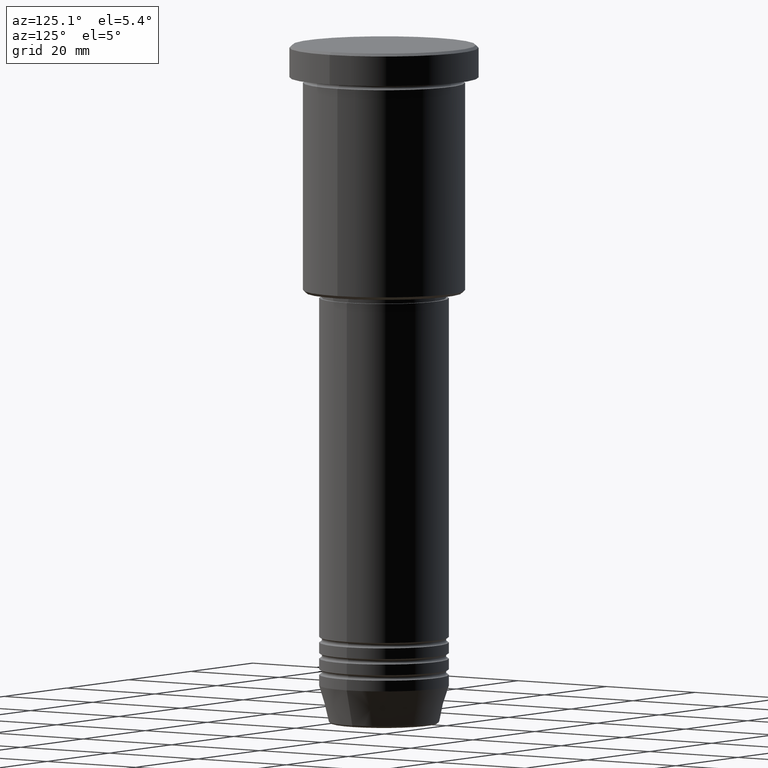
[diagram: clean part render]
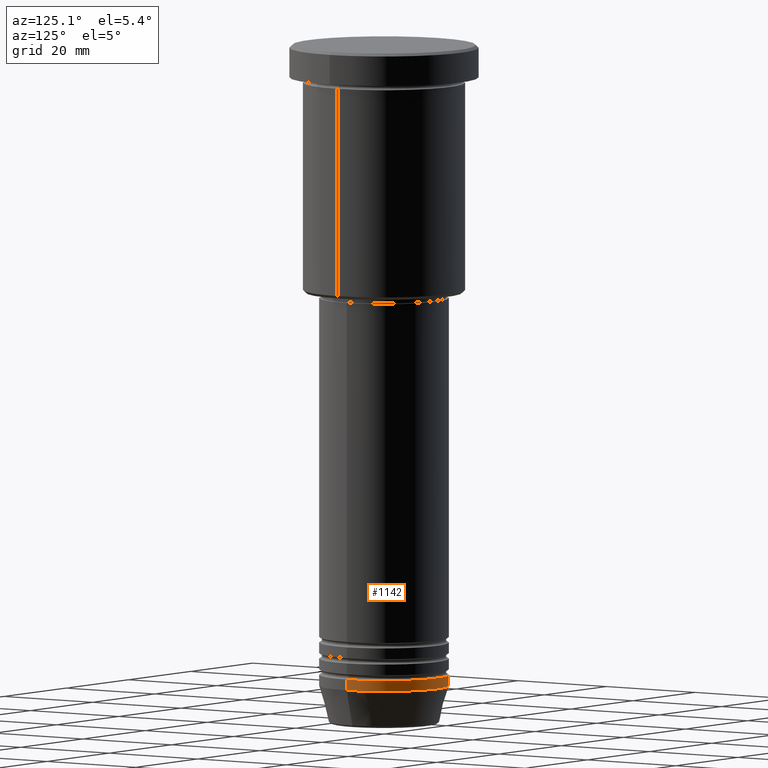
[diagram: same view with one face highlighted and labeled with its STEP entity id]
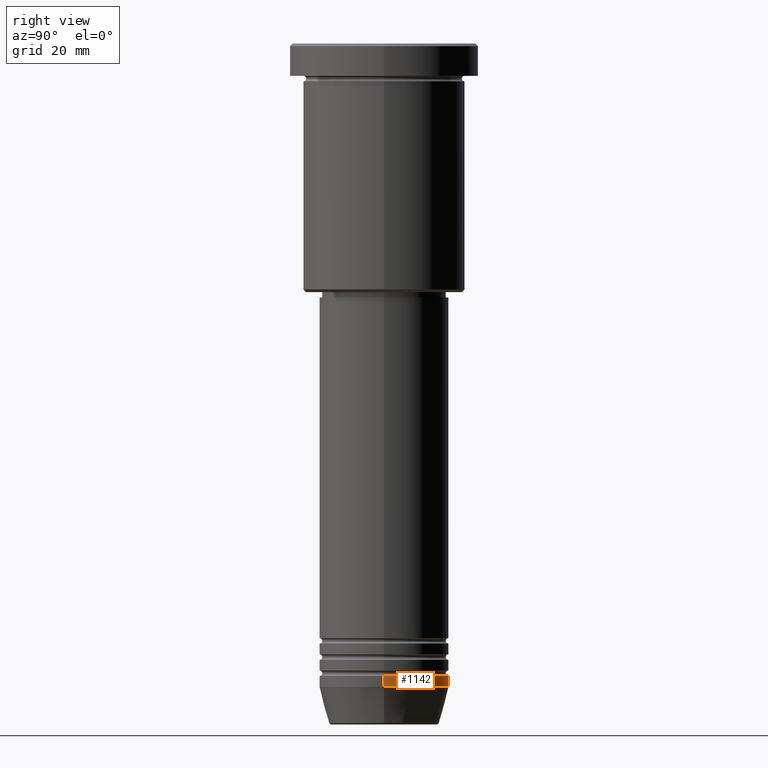
[diagram: same view with one face highlighted and labeled with its STEP entity id]
A machine part, auxiliary view. The second image highlights one B-rep face of the part: STEP entity #1142.
A second angle (right view) of the same face is appended — the face is thin or edge-on in the first view.
In plain terms, the highlighted cylindrical surface (partial cylindrical patch) has radius 12 mm, axis along (-0, -0, 1).
Its self-contained STEP definition (entity closure, byte-faithful):
#23 = DIRECTION ( 'NONE',  ( -0.000000000000000000, -0.000000000000000000, 1.000000000000000000 ) ) ;
#38 = AXIS2_PLACEMENT_3D ( 'NONE', #698, #417, #50 ) ;
#46 = FACE_OUTER_BOUND ( 'NONE', #416, .T. ) ;
#50 = DIRECTION ( 'NONE',  ( 1.000000000000000000, 0.000000000000000000, 0.000000000000000000 ) ) ;
#113 = VECTOR ( 'NONE', #23, 1000.000000000000000 ) ;
#136 = CARTESIAN_POINT ( 'NONE',  ( 12.00000000000000000, 0.000000000000000000, -119.0000000000000000 ) ) ;
#147 = CARTESIAN_POINT ( 'NONE',  ( -12.00000000000000000, 1.469576158976823947E-15, -119.0000000000000000 ) ) ;
#149 = CARTESIAN_POINT ( 'NONE',  ( -12.00000000000000000, 1.469576158976823947E-15, 0.000000000000000000 ) ) ;
#151 = VERTEX_POINT ( 'NONE', #136 ) ;
#196 = CARTESIAN_POINT ( 'NONE',  ( 12.00000000000000000, 0.000000000000000000, 0.000000000000000000 ) ) ;
#215 = VERTEX_POINT ( 'NONE', #461 ) ;
#300 = EDGE_CURVE ( 'NONE', #441, #1161, #763, .T. ) ;
#369 = LINE ( 'NONE', #196, #640 ) ;
#382 = DIRECTION ( 'NONE',  ( -0.000000000000000000, -0.000000000000000000, 1.000000000000000000 ) ) ;
#402 = DIRECTION ( 'NONE',  ( -0.000000000000000000, -0.000000000000000000, 1.000000000000000000 ) ) ;
#416 = EDGE_LOOP ( 'NONE', ( #766, #1066, #433, #974 ) ) ;
#417 = DIRECTION ( 'NONE',  ( -0.000000000000000000, -0.000000000000000000, 1.000000000000000000 ) ) ;
#419 = EDGE_CURVE ( 'NONE', #151, #441, #1092, .T. ) ;
#433 = ORIENTED_EDGE ( 'NONE', *, *, #841, .F. ) ;
#441 = VERTEX_POINT ( 'NONE', #147 ) ;
#461 = CARTESIAN_POINT ( 'NONE',  ( 12.00000000000000000, 0.000000000000000000, -117.0000000000000000 ) ) ;
#497 = EDGE_CURVE ( 'NONE', #151, #215, #369, .T. ) ;
#521 = CYLINDRICAL_SURFACE ( 'NONE', #809, 12.00000000000000000 ) ;
#547 = CARTESIAN_POINT ( 'NONE',  ( 0.000000000000000000, 0.000000000000000000, -119.0000000000000000 ) ) ;
#592 = CARTESIAN_POINT ( 'NONE',  ( 0.000000000000000000, 0.000000000000000000, 0.000000000000000000 ) ) ;
#640 = VECTOR ( 'NONE', #382, 1000.000000000000000 ) ;
#690 = DIRECTION ( 'NONE',  ( 1.000000000000000000, 0.000000000000000000, 0.000000000000000000 ) ) ;
#698 = CARTESIAN_POINT ( 'NONE',  ( 0.000000000000000000, 0.000000000000000000, -117.0000000000000000 ) ) ;
#763 = LINE ( 'NONE', #149, #113 ) ;
#766 = ORIENTED_EDGE ( 'NONE', *, *, #419, .T. ) ;
#776 = DIRECTION ( 'NONE',  ( 1.000000000000000000, 0.000000000000000000, 0.000000000000000000 ) ) ;
#809 = AXIS2_PLACEMENT_3D ( 'NONE', #592, #402, #690 ) ;
#823 = AXIS2_PLACEMENT_3D ( 'NONE', #547, #1154, #776 ) ;
#841 = EDGE_CURVE ( 'NONE', #215, #1161, #1073, .T. ) ;
#860 = CARTESIAN_POINT ( 'NONE',  ( -12.00000000000000000, 1.469576158976823947E-15, -117.0000000000000000 ) ) ;
#974 = ORIENTED_EDGE ( 'NONE', *, *, #497, .F. ) ;
#1066 = ORIENTED_EDGE ( 'NONE', *, *, #300, .T. ) ;
#1073 = CIRCLE ( 'NONE', #38, 12.00000000000000000 ) ;
#1092 = CIRCLE ( 'NONE', #823, 12.00000000000000000 ) ;
#1142 = ADVANCED_FACE ( 'NONE', ( #46 ), #521, .T. ) ;
#1154 = DIRECTION ( 'NONE',  ( -0.000000000000000000, -0.000000000000000000, 1.000000000000000000 ) ) ;
#1161 = VERTEX_POINT ( 'NONE', #860 ) ;